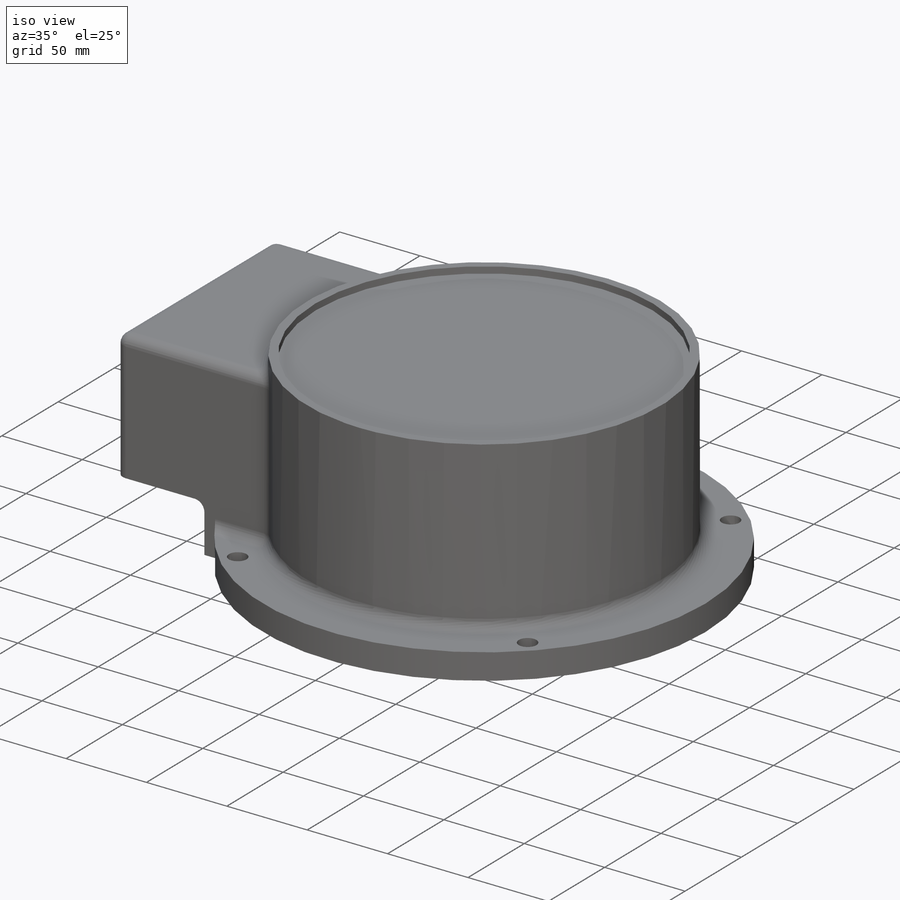
[diagram: iso view]
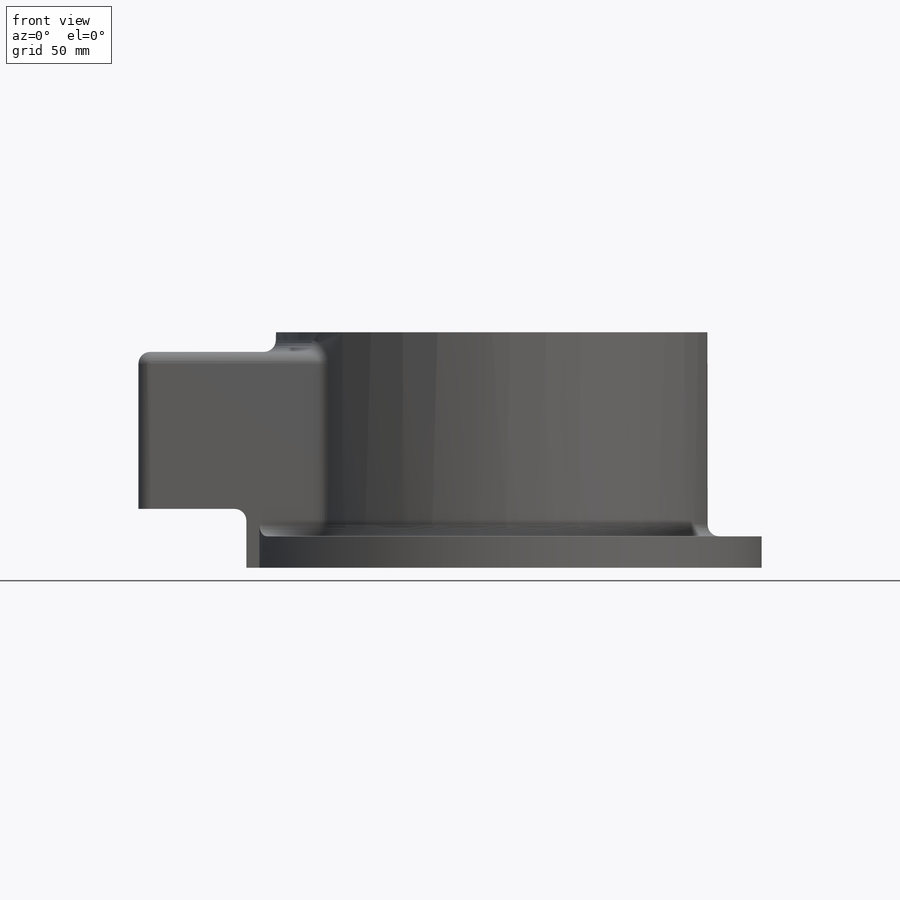
[diagram: front view]
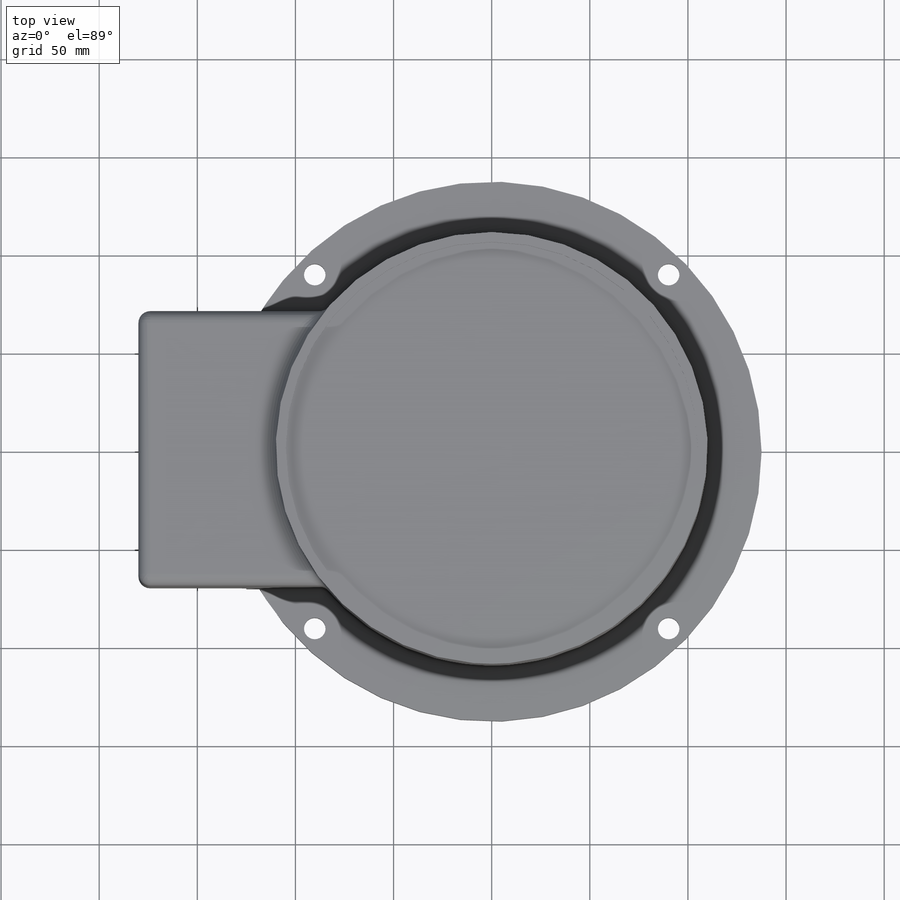
[diagram: top view]
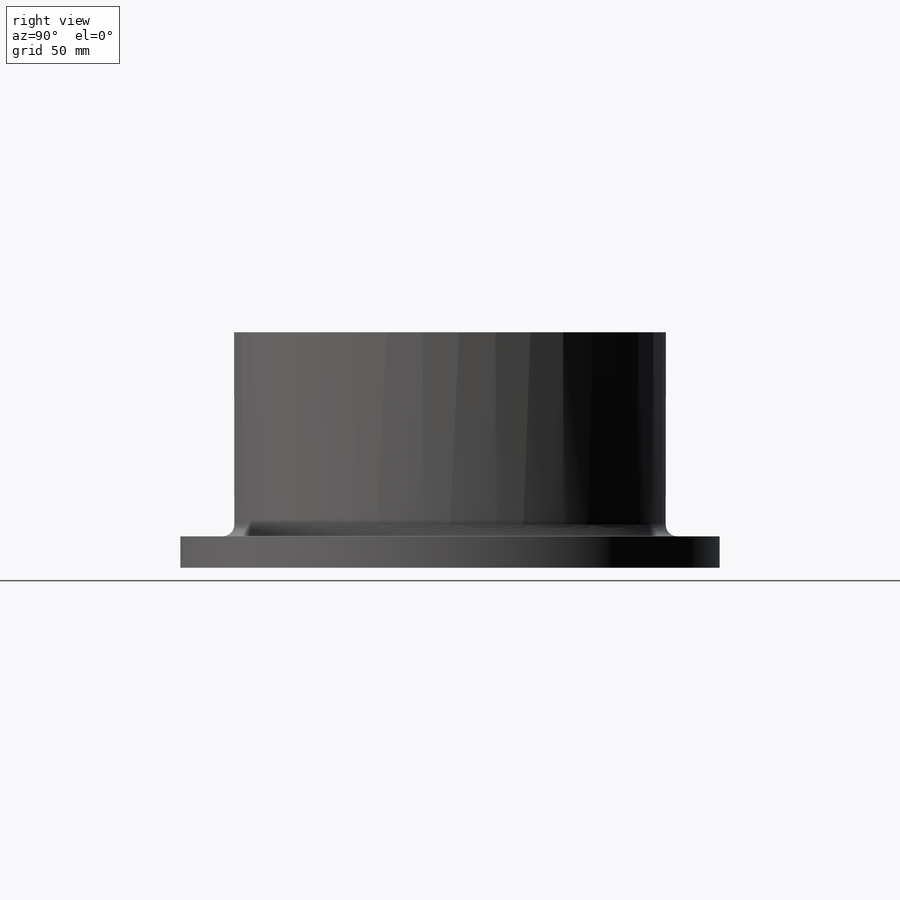
[diagram: right view]
SOLIDWORKS PART (.sldprt)
format: sldprt  version: not decoded by parser v0  size: 246,784 bytes
history: native  units: mm
features: sketch x6, extrude x3, cut_extrude x3, material x1, fillet x1 (+13 scaffold rows collapsed)
feature tree (27):
  scaffold x13  (default folders/planes/origin — collapsed)
  material  "Material <não especificado>"
  sketch  "Sketch1"  dims[c1.D1=220.0mm c1.D2=246.0mm c1.Cut_Length1=220.0mm c1.Cut_Length2=220.0mm c2.D2=180.0mm c2.D3=140.0mm]
  extrude  "Base"  Depth=110mm Stock_Size=110mm
  sketch  "Sketch2"  dims[c1.D3=10.0mm c1.D1=220.0mm c1.D2=220.0mm c1.D4=50.0mm c1.D5=50.0mm c1.D6=113.0mm c1.D7=113.0mm c2.D2=240.0mm c2.D1=250.0mm]
  extrude  "mtg flange"  Depth=16mm
  sketch  "Sketch6"
  fillet  "Fillet1"  Radius=6mm
  extrude  "Boss-Extrude1"  Depth=10mm
  sketch  "Sketch9"  dims[D1=55.0mm]
  cut_extrude  "Cut-Extrude4"  Depth=30mm
  sketch  "Sketch3"  dims[c1.D3=11.0mm c1.D1=195.0mm c1.D2=195.0mm c2.D1=10.0mm]
  cut_extrude  "Holes"  [1 undecoded]
  sketch  "Sketch8"  dims[D1=210.0mm]
  cut_extrude  "Cut-Extrude3"  Depth=4mm
decode coverage: 11 of 13 modeling features carry decoded parameters
note: 1 parameter value undecoded
note: suppression state not decoded; provenance and decode notes live in map.json
